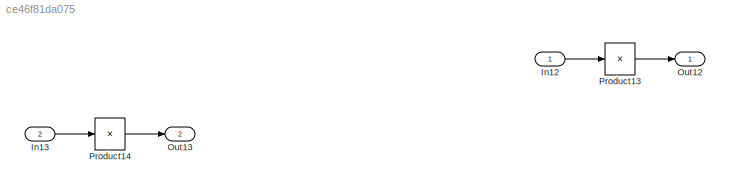
MODEL slx_ce46f81da075
KIND model
CONFIG AbsTol = auto
CONFIG EnableMultiTasking = on
CONFIG FixedStep = 0.1
CONFIG MaxStep = auto
CONFIG MinStep = auto
CONFIG RelTol = 1e-3
CONFIG SampleTimeConstraint = Unconstrained
CONFIG Solver = FixedStepAuto
CONFIG SolverName = FixedStepAuto
CONFIG StartTime = 0.0
CONFIG StopTime = 10.0
BLOCK [Inport] In12
  IconDisplay = Port number
  PortDimensions = 3
BLOCK [Inport] In13
  IconDisplay = Port number
  Port = 2
  PortDimensions = [2 3]
BLOCK [Outport] Out12
  IconDisplay = Port number
BLOCK [Outport] Out13
  IconDisplay = Port number
  Port = 2
BLOCK [Product] Product13
  CollapseMode = Specified dimension
  InputSameDT = off
  Inputs = /
  OutDataTypeStr = Inherit: Inherit via internal rule
  Ports = [1, 1]
  SaturateOnIntegerOverflow = off
BLOCK [Product] Product14
  CollapseMode = Specified dimension
  InputSameDT = off
  Inputs = /
  OutDataTypeStr = Inherit: Inherit via internal rule
  Ports = [1, 1]
  SaturateOnIntegerOverflow = off
LINE In12:1 -> Product13:1
LINE In13:1 -> Product14:1
LINE Product13:1 -> Out12:1
LINE Product14:1 -> Out13:1
